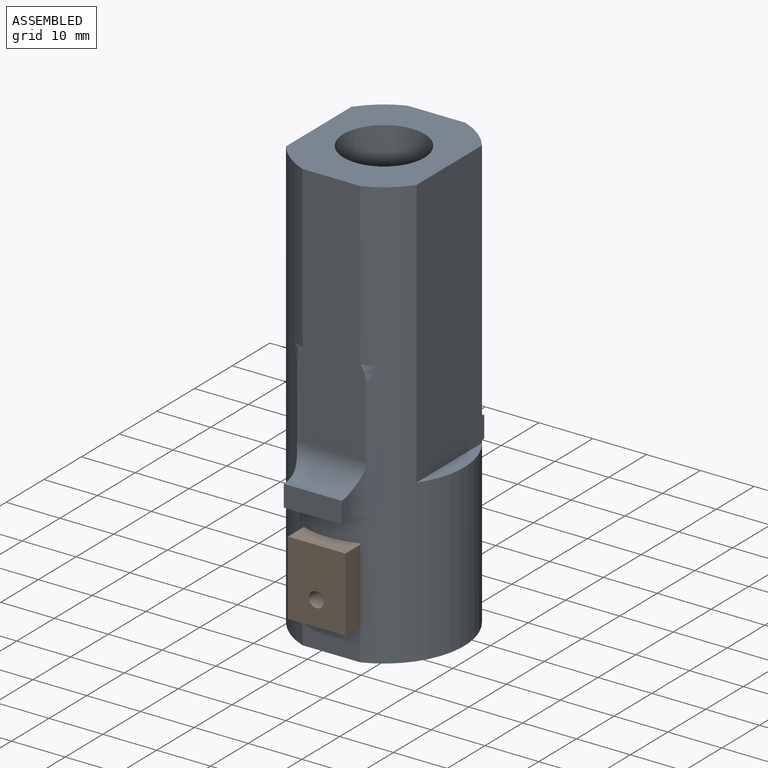
[diagram: assembled view]
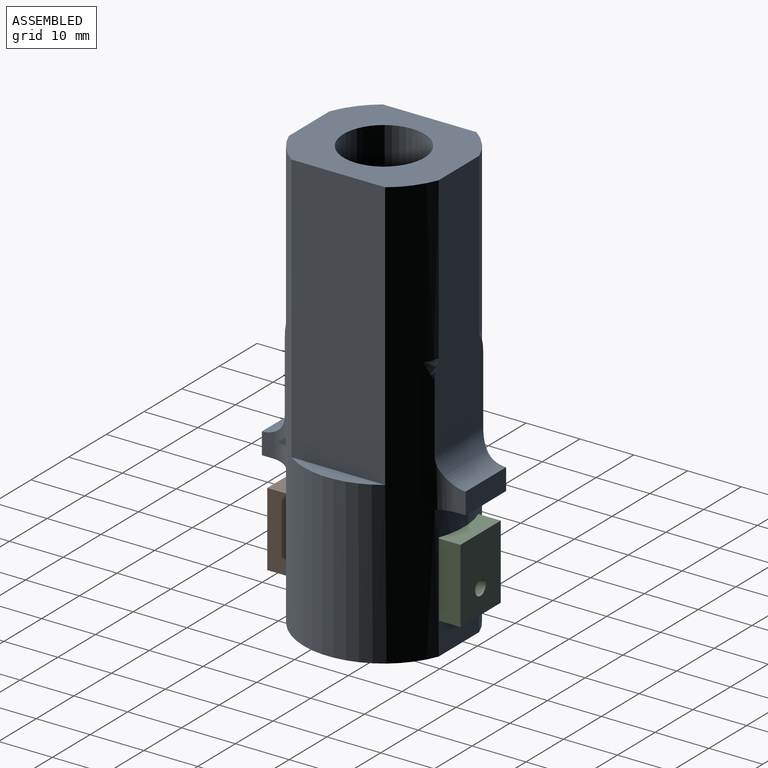
[diagram: assembled view, second angle]
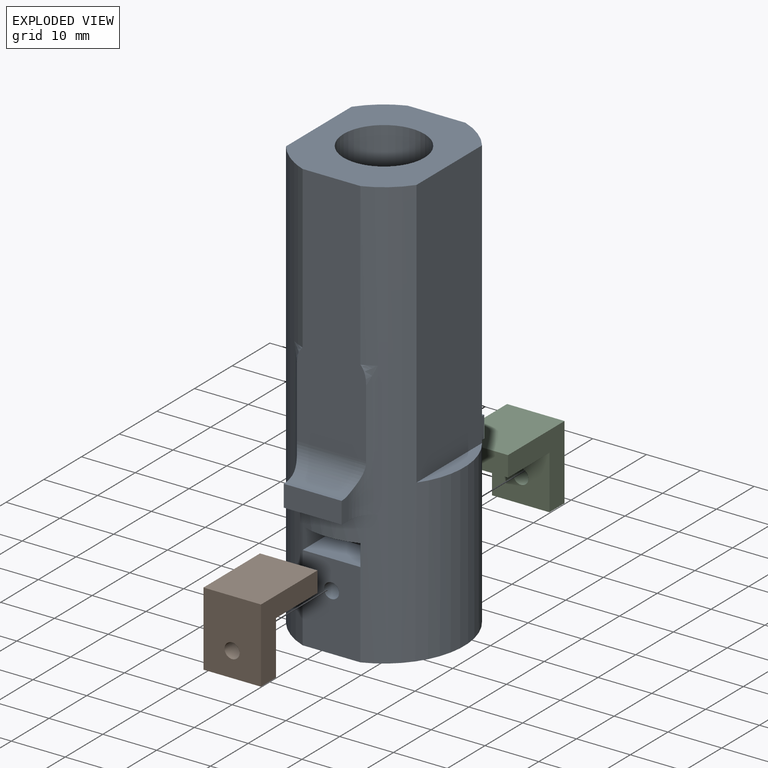
[diagram: exploded view]
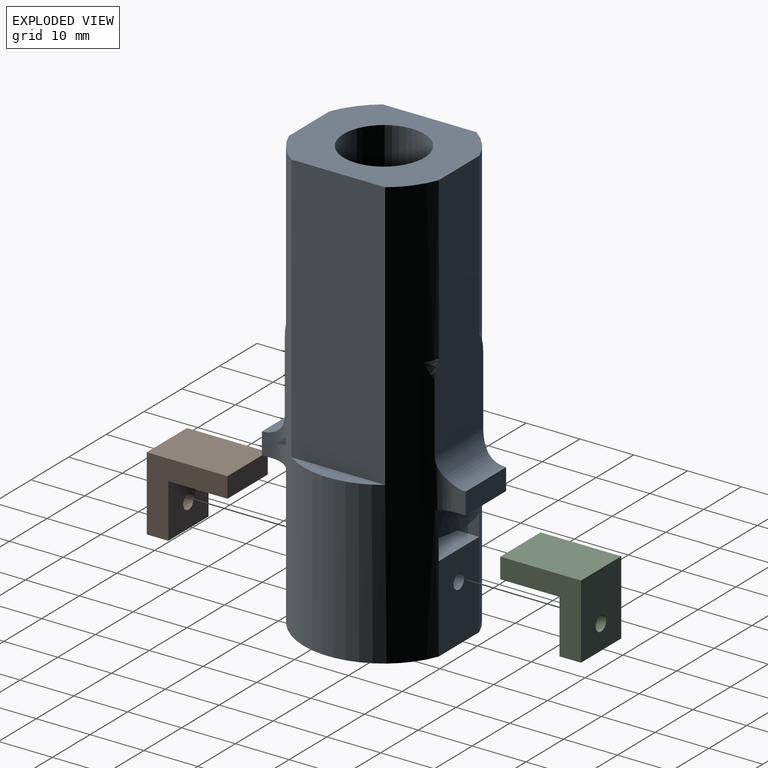
[diagram: exploded view, second angle]
ASSEMBLY  parts=3 mates=2
PART A: 41 faces, bbox 31.2x39.2x81.4 mm
  f0: cylinder r=14.93mm len=80mm, axis (0,0,-1), area 3648.5mm2, adj f1,f2,f3,f5,f6,f7,f8,f9
  f1: plane 27.85x24.25mm, normal (0,0,1), area 442.4mm2, adj f0,f2,f4,f17,f32,f33,f35
  f2: plane 47.32x14.23mm, normal (0,-1,0), area 526.1mm2, adj f0,f1,f22,f23,f24,f32,f39,f40
  f3: plane 16x10.74mm, normal (0,1,0), area 165.7mm2, adj f0,f6,f12,f16
  f4: cylinder r=7.5mm len=80mm, axis (0,0,-1), area 3661.8mm2, adj f1,f6,f7,f8,f9,f10,f11,f12
  f5: plane 16x10.74mm, normal (0,-1,0), area 165.7mm2, adj f0,f6,f11,f15
  f6: plane 29.85x27.85mm, normal (0,0,-1), area 508.7mm2, adj f0,f3,f4,f5
  f7: plane 10.74x9.69mm, normal (0,0,-1), area 83.8mm2, adj f0,f4,f9,f10
  f8: plane 10.74x9.69mm, normal (0,0,-1), area 83.8mm2, adj f0,f4,f13,f14
  f9: plane 8.69x4mm, normal (-1,0,0), area 34.8mm2, adj f0,f4,f7,f11
  f10: plane 8.69x4mm, normal (1,0,0), area 34.8mm2, adj f0,f4,f7,f11
  f11: plane 10.74x8.69mm, normal (0,0,1), area 76.6mm2, adj f4,f5,f9,f10
  f12: plane 10.74x8.69mm, normal (0,0,1), area 76.6mm2, adj f3,f4,f13,f14
  f13: plane 8.69x4mm, normal (1,0,0), area 34.8mm2, adj f0,f4,f8,f12
  f14: plane 8.69x4mm, normal (-1,0,0), area 34.8mm2, adj f0,f4,f8,f12
  f15: cylinder r=1.4mm len=6.43mm, axis (0,1,0), area 56.5mm2, adj f4,f5
  f16: cylinder r=1.4mm len=6.43mm, axis (0,1,0), area 56.5mm2, adj f3,f4
  f17: plane 47.32x14.23mm, normal (0,1,0), area 526mm2, adj f0,f1,f29,f30,f31,f37,f38
  f18: plane 4.38x1.91mm, normal (1,0,0), area 7.9mm2, adj f20,f21,f22,f24
  f19: plane 4.38x1.91mm, normal (-1,0,0), area 7.9mm2, adj f20,f21,f23,f24
  f20: plane 15.54x6.18mm, normal (0,0,-1), area 49.5mm2, adj f0,f18,f19,f21,f22,f23
  f21: plane 10.74x4mm, normal (0,-1,0), area 43mm2, adj f18,f19,f20,f24
  f22: cylinder r=5mm len=24.97mm, axis (0,0,-1), area 64mm2, adj f0,f2,f18,f20,f24,f40
  f23: cylinder r=5mm len=24.97mm, axis (0,0,-1), area 64.1mm2, adj f0,f2,f19,f20,f24,f39
  f24: cylinder r=5mm len=12.88mm, axis (1,0,0), area 90.7mm2, adj f2,f18,f19,f21,f22,f23
  f25: plane 4.38x1.91mm, normal (-1,0,0), area 7.9mm2, adj f27,f28,f29,f31
  f26: plane 4.38x1.91mm, normal (1,0,0), area 7.9mm2, adj f27,f28,f30,f31
  f27: plane 15.54x6.18mm, normal (0,0,-1), area 49.5mm2, adj f0,f25,f26,f28,f29,f30
  f28: plane 10.74x4mm, normal (0,1,0), area 43mm2, adj f25,f26,f27,f31
  f29: cylinder r=5mm len=24.97mm, axis (0,0,-1), area 64mm2, adj f0,f17,f25,f27,f31,f38
  f30: cylinder r=5mm len=24.97mm, axis (0,0,-1), area 64mm2, adj f0,f17,f26,f27,f31,f37
  f31: cylinder r=5mm len=12.88mm, axis (1,0,0), area 90.7mm2, adj f17,f25,f26,f28,f29,f30
  f32: extruded ~30x2.4mm, area 80.3mm2, adj f0,f1,f2,f39
  f33: plane 50x17.41mm, normal (1,0,0), area 870.3mm2, adj f0,f1,f34
  f34: plane 17.41x2.8mm, normal (0,0,1), area 33.2mm2, adj f0,f33
  f35: plane 50x17.41mm, normal (-1,0,0), area 870.3mm2, adj f0,f1,f36
  f36: plane 17.41x2.8mm, normal (0,0,1), area 33.2mm2, adj f0,f35
  f37: bspline ~4.91x3.61mm, area 4.1mm2, adj f0,f17,f30
  f38: bspline ~4.91x3.61mm, area 4.1mm2, adj f0,f17,f29
  f39: bspline ~4.4x3.54mm, area 3.2mm2, adj f2,f23,f32
  f40: bspline ~4.91x3.61mm, area 4.1mm2, adj f0,f2,f22
PART B: 9 faces, bbox 10.7x13.8x15 mm
  f0: plane 11x10.68mm, normal (0,-1,0), area 117.5mm2, adj f2,f3,f5,f6
  f1: plane 15x10.68mm, normal (0,1,0), area 160.2mm2, adj f2,f3,f4,f5
  f2: plane 15x13.8mm, normal (-1,0,0), area 97mm2, adj f0,f1,f4,f5,f6,f7
  f3: plane 15x13.8mm, normal (1,0,0), area 97mm2, adj f0,f1,f4,f5,f6,f7
  f4: plane 13.8x10.68mm, normal (0,0,1), area 141.2mm2, adj f1,f2,f3,f7,f8
  f5: plane 10.68x3.8mm, normal (0,0,-1), area 40.6mm2, adj f0,f1,f2,f3
  f6: plane 10.68x10mm, normal (0,0,-1), area 100.6mm2, adj f0,f2,f3,f7,f8
  f7: plane 10.68x4mm, normal (0,-1,0), area 42.7mm2, adj f2,f3,f4,f6
  f8: cylinder r=1.4mm len=4mm, axis (0,0,1), area 35.2mm2, adj f4,f6
PART C: same geometry as B
PLACE A t=(-36.38,5.16,-0.76)mm fixed
PLACE B rot(axis=(1,0,0),90deg) t=(-31,2.23,15.24)mm
PLACE C rot(axis=(0,0.71,0.71),180deg) t=(-41.75,8.08,15.24)mm
MATE fastened B.f8 <-> A.f15  axis (0,1,0) through (-36.38,-8.77,9.84)mm
MATE fastened C.f8 <-> A.f15  axis (0,-1,0) through (-36.38,19.08,9.84)mm
